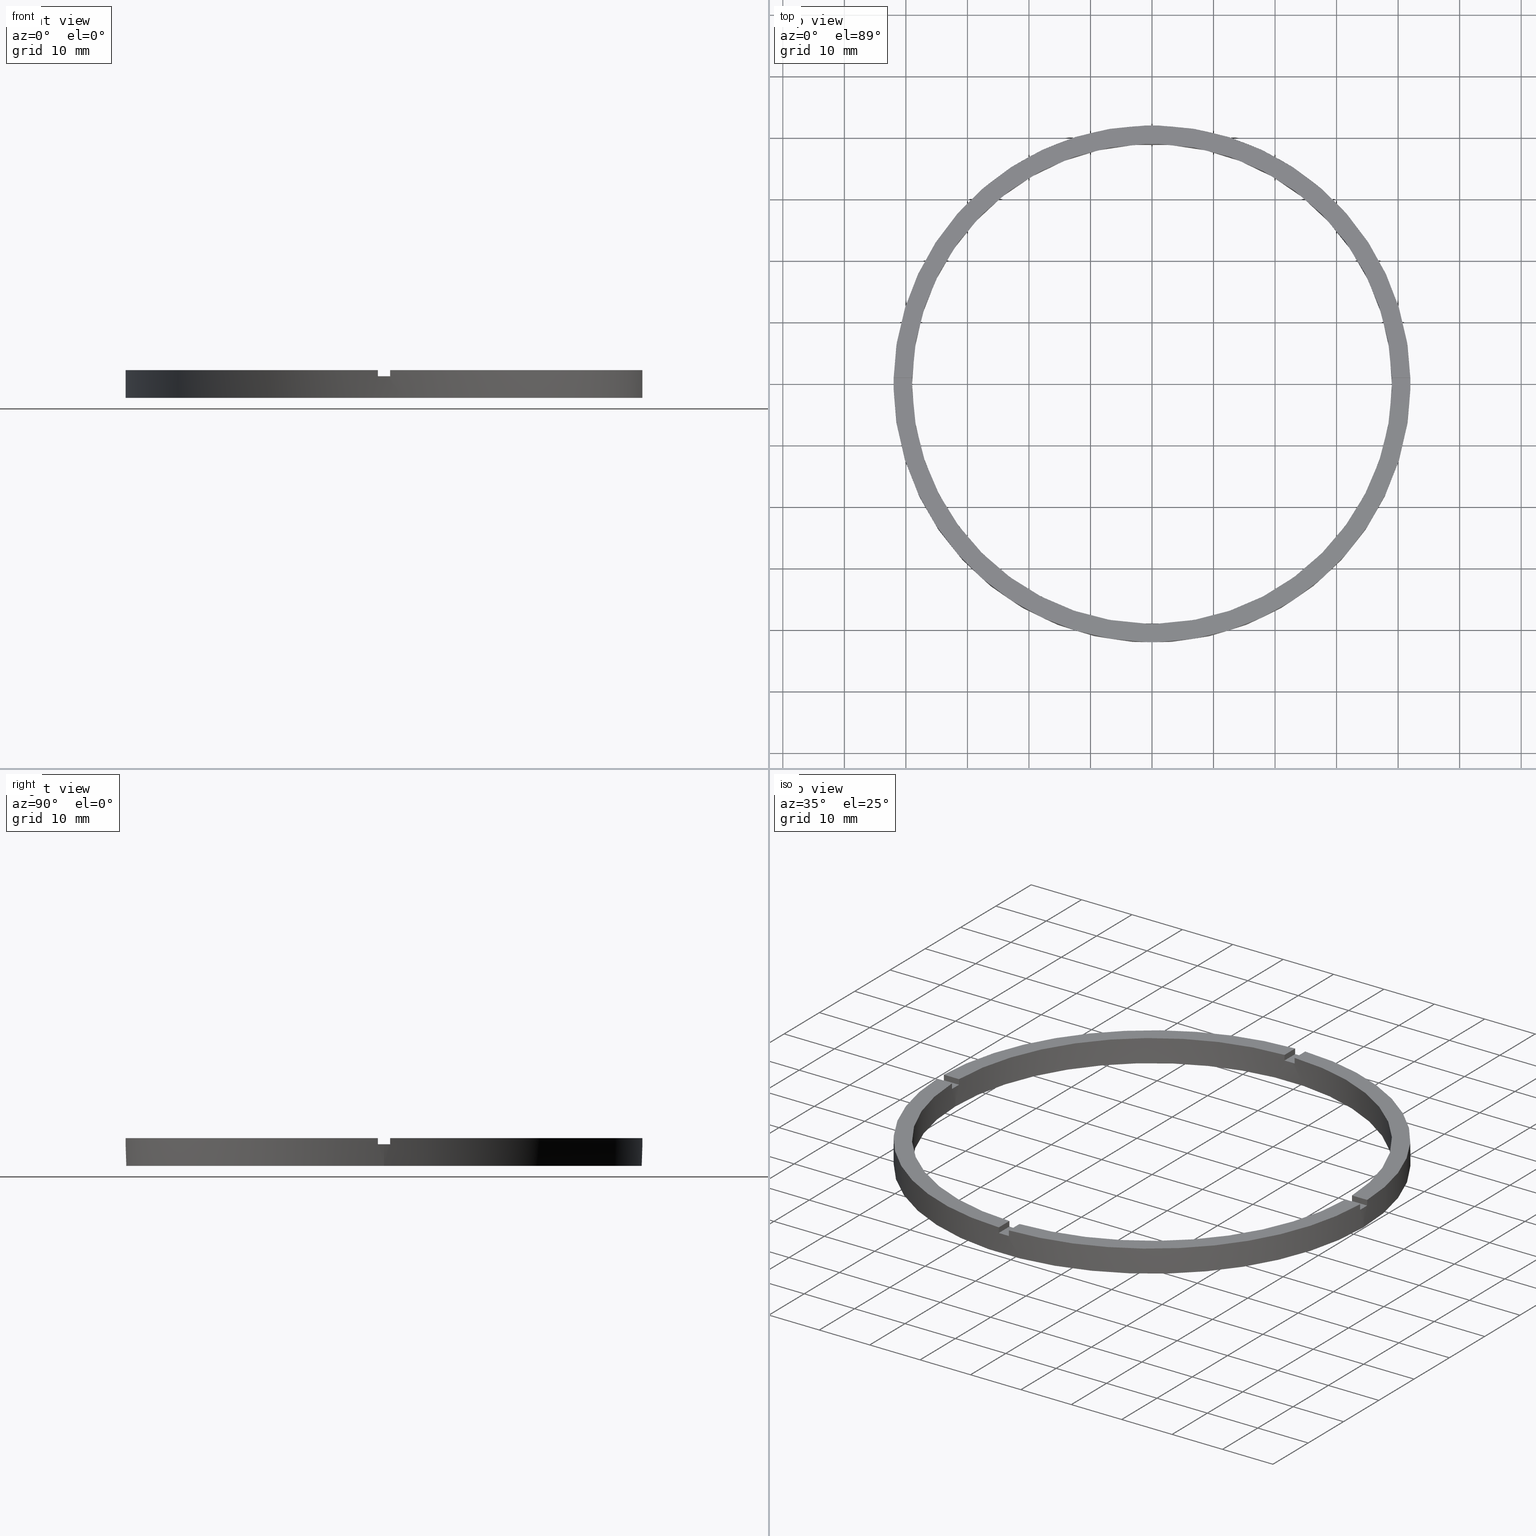
[diagram: canonical four-view strip — front | top / right | iso, engineering-drawing reading convention]
A machine part, canonical four-view strip (front | top / right | iso — engineering-drawing reading convention). The complete STEP part file that produces these views, byte-faithful:
ISO-10303-21;
HEADER;
FILE_DESCRIPTION (( 'STEP AP203' ),
    '1' );
FILE_NAME ('514172.step',
    '2024-12-26T02:44:33',
    ( 'MSI' ),
    ( '' ),
    'SwSTEP 2.0',
    'SolidWorks 2020',
    '' );
FILE_SCHEMA (( 'CONFIG_CONTROL_DESIGN' ));
ENDSEC;

DATA;
#1 = APPROVAL_STATUS ( 'not_yet_approved' ) ;
#2 = AXIS2_PLACEMENT_3D ( 'NONE', #567, #324, #333 ) ;
#3 = AXIS2_PLACEMENT_3D ( 'NONE', #343, #192, #351 ) ;
#4 = VERTEX_POINT ( 'NONE', #776 ) ;
#5 = DIRECTION ( 'NONE',  ( -0.000000000000000000, 0.000000000000000000, 1.000000000000000000 ) ) ;
#6 = CARTESIAN_POINT ( 'NONE',  ( 0.9999999999999742428, 32.00000000000000000, 4.500000000000000000 ) ) ;
#7 = EDGE_CURVE ( 'NONE', #493, #204, #397, .T. ) ;
#8 = ORIENTED_EDGE ( 'NONE', *, *, #475, .F. ) ;
#9 = EDGE_CURVE ( 'NONE', #652, #780, #679, .T. ) ;
#10 = AXIS2_PLACEMENT_3D ( 'NONE', #352, #431, #483 ) ;
#11 = ORIENTED_EDGE ( 'NONE', *, *, #76, .F. ) ;
#12 = DIRECTION ( 'NONE',  ( 0.000000000000000000, 0.000000000000000000, 1.000000000000000000 ) ) ;
#13 = ORIENTED_EDGE ( 'NONE', *, *, #157, .T. ) ;
#14 = CARTESIAN_POINT ( 'NONE',  ( -1.000000000000025757, 32.00000000000000000, 3.499999999999999556 ) ) ;
#15 = ORIENTED_EDGE ( 'NONE', *, *, #249, .T. ) ;
#16 = EDGE_CURVE ( 'NONE', #70, #673, #127, .T. ) ;
#17 = EDGE_LOOP ( 'NONE', ( #44, #288, #305, #42, #549, #563, #669, #557, #371, #126, #556, #259 ) ) ;
#18 = ORIENTED_EDGE ( 'NONE', *, *, #486, .T. ) ;
#19 = VERTEX_POINT ( 'NONE', #615 ) ;
#20 = CARTESIAN_POINT ( 'NONE',  ( 39.00000000000000000, 4.776122516674677878E-15, 0.000000000000000000 ) ) ;
#21 = ORIENTED_EDGE ( 'NONE', *, *, #110, .T. ) ;
#22 = CARTESIAN_POINT ( 'NONE',  ( 39.00000000000000000, 4.776122516674677878E-15, 3.499999999999999556 ) ) ;
#23 = PLANE ( 'NONE',  #361 ) ;
#24 = ORIENTED_EDGE ( 'NONE', *, *, #703, .T. ) ;
#25 = ORIENTED_EDGE ( 'NONE', *, *, #303, .F. ) ;
#26 = ORIENTED_EDGE ( 'NONE', *, *, #504, .F. ) ;
#27 = DIRECTION ( 'NONE',  ( -1.000000000000000000, -1.951563910473907735E-16, 0.000000000000000000 ) ) ;
#28 = CIRCLE ( 'NONE', #624, 39.00000000000000000 ) ;
#29 = EDGE_LOOP ( 'NONE', ( #11, #640, #777, #107, #498, #658, #772, #293, #524, #643, #232, #224 ) ) ;
#30 = ORIENTED_EDGE ( 'NONE', *, *, #507, .T. ) ;
#31 = ORIENTED_EDGE ( 'NONE', *, *, #603, .F. ) ;
#32 = VERTEX_POINT ( 'NONE', #274 ) ;
#33 = ORIENTED_EDGE ( 'NONE', *, *, #273, .T. ) ;
#34 = ORIENTED_EDGE ( 'NONE', *, *, #255, .T. ) ;
#35 = ORIENTED_EDGE ( 'NONE', *, *, #340, .T. ) ;
#36 = EDGE_LOOP ( 'NONE', ( #66, #764, #572, #264 ) ) ;
#37 = ORIENTED_EDGE ( 'NONE', *, *, #119, .F. ) ;
#38 = EDGE_LOOP ( 'NONE', ( #13, #111 ) ) ;
#39 = CARTESIAN_POINT ( 'NONE',  ( 0.000000000000000000, 0.000000000000000000, 3.499999999999999556 ) ) ;
#40 = ORIENTED_EDGE ( 'NONE', *, *, #291, .F. ) ;
#41 = CARTESIAN_POINT ( 'NONE',  ( 0.000000000000000000, 0.000000000000000000, 3.499999999999999556 ) ) ;
#42 = ORIENTED_EDGE ( 'NONE', *, *, #655, .F. ) ;
#43 = VERTEX_POINT ( 'NONE', #302 ) ;
#44 = ORIENTED_EDGE ( 'NONE', *, *, #628, .F. ) ;
#45 = EDGE_CURVE ( 'NONE', #656, #648, #116, .T. ) ;
#46 = ORIENTED_EDGE ( 'NONE', *, *, #770, .T. ) ;
#47 = ADVANCED_FACE ( 'NONE', ( #123 ), #515, .T. ) ;
#48 = CLOSED_SHELL ( 'NONE', ( #569, #137, #579, #518, #47, #395, #91, #752, #348, #93, #744, #637, #644, #513, #331, #206, #469, #160, #724, #99, #600 ) ) ;
#49 = CARTESIAN_POINT ( 'NONE',  ( 0.000000000000000000, 0.000000000000000000, 0.000000000000000000 ) ) ;
#50 = DIRECTION ( 'NONE',  ( -0.000000000000000000, -0.000000000000000000, -1.000000000000000000 ) ) ;
#51 = EDGE_LOOP ( 'NONE', ( #542, #564, #269, #26, #555, #535, #24, #373, #34, #31, #297, #25 ) ) ;
#52 = DIRECTION ( 'NONE',  ( 8.673617379884034239E-17, -1.000000000000000000, 0.000000000000000000 ) ) ;
#53 = AXIS2_PLACEMENT_3D ( 'NONE', #268, #525, #412 ) ;
#54 = PRODUCT_RELATED_PRODUCT_CATEGORY ( 'detail', '', ( #253 ) ) ;
#55 = ORIENTED_EDGE ( 'NONE', *, *, #198, .F. ) ;
#56 = CARTESIAN_POINT ( 'NONE',  ( 31.99999999999999289, -1.000000000000157430, 3.499999999999999556 ) ) ;
#57 = APPROVAL_PERSON_ORGANIZATION ( #613, #244, #229 ) ;
#58 = EDGE_CURVE ( 'NONE', #43, #318, #381, .T. ) ;
#59 = APPROVAL_DATE_TIME ( #74, #662 ) ;
#60 = VERTEX_POINT ( 'NONE', #169 ) ;
#61 = PLANE ( 'NONE',  #205 ) ;
#62 = CARTESIAN_POINT ( 'NONE',  ( -38.98717737923585247, 0.9999999999999715783, 4.500000000000000000 ) ) ;
#63 = EDGE_CURVE ( 'NONE', #103, #262, #375, .T. ) ;
#64 = CARTESIAN_POINT ( 'NONE',  ( 31.99999999999999289, 0.9999999999998425704, 3.499999999999999556 ) ) ;
#65 = FACE_OUTER_BOUND ( 'NONE', #132, .T. ) ;
#66 = ORIENTED_EDGE ( 'NONE', *, *, #753, .T. ) ;
#67 = VECTOR ( 'NONE', #561, 1000.000000000000000 ) ;
#68 = ORIENTED_EDGE ( 'NONE', *, *, #7, .F. ) ;
#69 = AXIS2_PLACEMENT_3D ( 'NONE', #775, #330, #168 ) ;
#70 = VERTEX_POINT ( 'NONE', #84 ) ;
#71 = DIRECTION ( 'NONE',  ( 1.000000000000000000, 0.000000000000000000, -0.000000000000000000 ) ) ;
#72 = DIRECTION ( 'NONE',  ( 0.000000000000000000, 0.000000000000000000, 1.000000000000000000 ) ) ;
#73 = ORIENTED_EDGE ( 'NONE', *, *, #621, .F. ) ;
#74 = DATE_AND_TIME ( #328, #587 ) ;
#75 = CARTESIAN_POINT ( 'NONE',  ( -1.000000000000159206, -38.98717737923584536, 4.500000000000000000 ) ) ;
#76 = EDGE_CURVE ( 'NONE', #258, #304, #384, .T. ) ;
#77 = VECTOR ( 'NONE', #490, 1000.000000000000000 ) ;
#78 = COORDINATED_UNIVERSAL_TIME_OFFSET ( 8, 0, .AHEAD. ) ;
#79 = CARTESIAN_POINT ( 'NONE',  ( 0.000000000000000000, 0.000000000000000000, 3.499999999999999556 ) ) ;
#80 = PERSON_AND_ORGANIZATION ( #459, #582 ) ;
#81 = PERSON_AND_ORGANIZATION ( #459, #582 ) ;
#82 = FACE_OUTER_BOUND ( 'NONE', #29, .T. ) ;
#83 = DIRECTION ( 'NONE',  ( 1.000000000000000000, 0.000000000000000000, 0.000000000000000000 ) ) ;
#84 = CARTESIAN_POINT ( 'NONE',  ( 0.9999999999998412381, -41.98809355043403713, 4.500000000000000000 ) ) ;
#85 = LOCAL_TIME ( 10, 44, 33.00000000000000000, #78 ) ;
#86 = CALENDAR_DATE ( 2024, 26, 12 ) ;
#87 = DATE_AND_TIME ( #574, #309 ) ;
#88 = AXIS2_PLACEMENT_3D ( 'NONE', #647, #536, #257 ) ;
#89 = PRODUCT_DEFINITION_FORMATION_WITH_SPECIFIED_SOURCE ( '�κ�', '', #253, .NOT_KNOWN. ) ;
#90 = DIRECTION ( 'NONE',  ( 1.000000000000000000, 0.000000000000000000, 0.000000000000000000 ) ) ;
#91 = ADVANCED_FACE ( 'NONE', ( #117, #118 ), #495, .F. ) ;
#92 = DIRECTION ( 'NONE',  ( 0.000000000000000000, 0.000000000000000000, 1.000000000000000000 ) ) ;
#93 = ADVANCED_FACE ( 'NONE', ( #667 ), #358, .F. ) ;
#94 = CARTESIAN_POINT ( 'NONE',  ( 0.000000000000000000, 0.000000000000000000, 3.499999999999999556 ) ) ;
#95 = DIRECTION ( 'NONE',  ( 1.000000000000000000, 0.000000000000000000, 0.000000000000000000 ) ) ;
#96 = CC_DESIGN_PERSON_AND_ORGANIZATION_ASSIGNMENT ( #80, #426, ( #89 ) ) ;
#97 = DIRECTION ( 'NONE',  ( -0.000000000000000000, -0.000000000000000000, -1.000000000000000000 ) ) ;
#98 = CARTESIAN_POINT ( 'NONE',  ( -32.00000000000018474, -1.000000000000027089, 4.500000000000000000 ) ) ;
#99 = ADVANCED_FACE ( 'NONE', ( #638 ), #620, .F. ) ;
#100 = DIRECTION ( 'NONE',  ( -1.000000000000000000, 0.000000000000000000, 0.000000000000000000 ) ) ;
#101 = DIRECTION ( 'NONE',  ( 0.000000000000000000, 0.000000000000000000, 1.000000000000000000 ) ) ;
#102 = VECTOR ( 'NONE', #97, 1000.000000000000000 ) ;
#103 = VERTEX_POINT ( 'NONE', #686 ) ;
#104 = VERTEX_POINT ( 'NONE', #299 ) ;
#105 = AXIS2_PLACEMENT_3D ( 'NONE', #654, #732, #485 ) ;
#106 = CARTESIAN_POINT ( 'NONE',  ( -1.000000000000025757, 38.98717737923585247, 4.500000000000000000 ) ) ;
#107 = ORIENTED_EDGE ( 'NONE', *, *, #710, .F. ) ;
#108 = CARTESIAN_POINT ( 'NONE',  ( 38.98717737923585958, 0.9999999999998432365, 4.500000000000000000 ) ) ;
#109 = EDGE_LOOP ( 'NONE', ( #520, #382, #33, #653 ) ) ;
#110 = EDGE_CURVE ( 'NONE', #207, #228, #120, .T. ) ;
#111 = ORIENTED_EDGE ( 'NONE', *, *, #287, .T. ) ;
#112 = AXIS2_PLACEMENT_3D ( 'NONE', #94, #265, #210 ) ;
#113 = DIRECTION ( 'NONE',  ( 1.000000000000000000, 0.000000000000000000, -0.000000000000000000 ) ) ;
#114 = VECTOR ( 'NONE', #286, 1000.000000000000000 ) ;
#115 = DIRECTION ( 'NONE',  ( -8.673617379884034239E-17, 1.000000000000000000, 0.000000000000000000 ) ) ;
#116 = LINE ( 'NONE', #467, #136 ) ;
#117 = FACE_OUTER_BOUND ( 'NONE', #282, .T. ) ;
#118 = FACE_BOUND ( 'NONE', #38, .T. ) ;
#119 = EDGE_CURVE ( 'NONE', #316, #458, #428, .T. ) ;
#120 = LINE ( 'NONE', #106, #102 ) ;
#121 = ORIENTED_EDGE ( 'NONE', *, *, #255, .F. ) ;
#122 = DIRECTION ( 'NONE',  ( 0.000000000000000000, 0.000000000000000000, 1.000000000000000000 ) ) ;
#123 = FACE_OUTER_BOUND ( 'NONE', #641, .T. ) ;
#124 = ORIENTED_EDGE ( 'NONE', *, *, #125, .T. ) ;
#125 = EDGE_CURVE ( 'NONE', #32, #760, #432, .T. ) ;
#126 = ORIENTED_EDGE ( 'NONE', *, *, #203, .T. ) ;
#127 = LINE ( 'NONE', #424, #650 ) ;
#128 = VECTOR ( 'NONE', #523, 1000.000000000000000 ) ;
#129 = DIRECTION ( 'NONE',  ( 1.301042606982605074E-16, -1.000000000000000000, 0.000000000000000000 ) ) ;
#130 = EDGE_LOOP ( 'NONE', ( #275, #546, #665, #254 ) ) ;
#131 = CARTESIAN_POINT ( 'NONE',  ( 0.000000000000000000, 0.000000000000000000, 0.000000000000000000 ) ) ;
#132 = EDGE_LOOP ( 'NONE', ( #312, #21, #499, #272 ) ) ;
#133 = ORIENTED_EDGE ( 'NONE', *, *, #144, .T. ) ;
#134 = ORIENTED_EDGE ( 'NONE', *, *, #16, .F. ) ;
#135 = ORIENTED_EDGE ( 'NONE', *, *, #714, .T. ) ;
#136 = VECTOR ( 'NONE', #676, 1000.000000000000000 ) ;
#137 = ADVANCED_FACE ( 'NONE', ( #161 ), #143, .T. ) ;
#138 = VECTOR ( 'NONE', #607, 1000.000000000000000 ) ;
#139 = CIRCLE ( 'NONE', #509, 42.00000000000000000 ) ;
#140 = VECTOR ( 'NONE', #27, 1000.000000000000000 ) ;
#141 = LINE ( 'NONE', #528, #138 ) ;
#142 = CIRCLE ( 'NONE', #158, 42.00000000000000000 ) ;
#143 = CYLINDRICAL_SURFACE ( 'NONE', #451, 42.00000000000000000 ) ;
#144 = EDGE_CURVE ( 'NONE', #392, #652, #689, .T. ) ;
#145 = CYLINDRICAL_SURFACE ( 'NONE', #457, 39.00000000000000000 ) ;
#146 = AXIS2_PLACEMENT_3D ( 'NONE', #418, #718, #474 ) ;
#147 = VECTOR ( 'NONE', #737, 1000.000000000000000 ) ;
#148 = CC_DESIGN_APPROVAL ( #662, ( #196 ) ) ;
#149 = LINE ( 'NONE', #722, #696 ) ;
#150 = DIRECTION ( 'NONE',  ( 1.000000000000000000, 0.000000000000000000, -0.000000000000000000 ) ) ;
#151 = CIRCLE ( 'NONE', #632, 39.00000000000000000 ) ;
#152 = DIRECTION ( 'NONE',  ( -1.000000000000000000, 0.000000000000000000, 0.000000000000000000 ) ) ;
#153 = VECTOR ( 'NONE', #129, 1000.000000000000000 ) ;
#154 = EDGE_CURVE ( 'NONE', #247, #501, #699, .T. ) ;
#155 = LINE ( 'NONE', #642, #427 ) ;
#156 = VECTOR ( 'NONE', #72, 1000.000000000000000 ) ;
#157 = EDGE_CURVE ( 'NONE', #60, #677, #411, .T. ) ;
#158 = AXIS2_PLACEMENT_3D ( 'NONE', #778, #101, #283 ) ;
#159 = FACE_OUTER_BOUND ( 'NONE', #295, .T. ) ;
#160 = ADVANCED_FACE ( 'NONE', ( #700 ), #174, .T. ) ;
#161 = FACE_OUTER_BOUND ( 'NONE', #17, .T. ) ;
#162 = DIRECTION ( 'NONE',  ( -0.000000000000000000, -0.000000000000000000, -1.000000000000000000 ) ) ;
#163 = CARTESIAN_POINT ( 'NONE',  ( -38.98717737923585247, -1.000000000000028422, 4.500000000000000000 ) ) ;
#164 = ORIENTED_EDGE ( 'NONE', *, *, #327, .T. ) ;
#165 = CIRCLE ( 'NONE', #759, 42.00000000000000000 ) ;
#166 = DIRECTION ( 'NONE',  ( 1.000000000000000000, 0.000000000000000000, -0.000000000000000000 ) ) ;
#167 = LINE ( 'NONE', #682, #156 ) ;
#168 = DIRECTION ( 'NONE',  ( 1.000000000000000000, 0.000000000000000000, 0.000000000000000000 ) ) ;
#169 = CARTESIAN_POINT ( 'NONE',  ( -39.00000000000000000, 0.000000000000000000, 0.000000000000000000 ) ) ;
#170 = AXIS2_PLACEMENT_3D ( 'NONE', #79, #292, #166 ) ;
#171 = VECTOR ( 'NONE', #270, 1000.000000000000000 ) ;
#172 = EDGE_CURVE ( 'NONE', #4, #760, #692, .T. ) ;
#173 = CIRCLE ( 'NONE', #112, 39.00000000000000000 ) ;
#174 = PLANE ( 'NONE',  #170 ) ;
#175 = DIRECTION ( 'NONE',  ( 0.000000000000000000, 0.000000000000000000, 1.000000000000000000 ) ) ;
#176 = FACE_OUTER_BOUND ( 'NONE', #379, .T. ) ;
#177 = DIRECTION ( 'NONE',  ( 1.000000000000000000, 8.673617379884034239E-17, 0.000000000000000000 ) ) ;
#178 = CARTESIAN_POINT ( 'NONE',  ( 31.99999999999999289, 0.9999999999998425704, 4.500000000000000000 ) ) ;
#179 = FACE_OUTER_BOUND ( 'NONE', #575, .T. ) ;
#180 = FACE_OUTER_BOUND ( 'NONE', #577, .T. ) ;
#181 = CARTESIAN_POINT ( 'NONE',  ( 0.000000000000000000, 0.000000000000000000, 4.500000000000000000 ) ) ;
#182 = LINE ( 'NONE', #163, #719 ) ;
#183 = LINE ( 'NONE', #659, #453 ) ;
#184 = LINE ( 'NONE', #62, #449 ) ;
#185 = FACE_OUTER_BOUND ( 'NONE', #109, .T. ) ;
#186 = CARTESIAN_POINT ( 'NONE',  ( -39.00000000000000000, 0.000000000000000000, 4.500000000000000000 ) ) ;
#187 = CIRCLE ( 'NONE', #408, 39.00000000000000000 ) ;
#188 = DIRECTION ( 'NONE',  ( -0.000000000000000000, -0.000000000000000000, -1.000000000000000000 ) ) ;
#189 = VECTOR ( 'NONE', #672, 1000.000000000000000 ) ;
#190 = CC_DESIGN_APPROVAL ( #545, ( #89 ) ) ;
#191 = FACE_OUTER_BOUND ( 'NONE', #769, .T. ) ;
#192 = DIRECTION ( 'NONE',  ( 0.000000000000000000, -0.000000000000000000, 1.000000000000000000 ) ) ;
#193 = EDGE_CURVE ( 'NONE', #392, #315, #416, .T. ) ;
#194 = DIRECTION ( 'NONE',  ( 1.000000000000000000, 0.000000000000000000, 0.000000000000000000 ) ) ;
#195 = AXIS2_PLACEMENT_3D ( 'NONE', #779, #175, #71 ) ;
#196 = PRODUCT_DEFINITION ( 'δ֪', '', #89, #240 ) ;
#197 = APPROVAL_STATUS ( 'not_yet_approved' ) ;
#198 = EDGE_CURVE ( 'NONE', #300, #560, #151, .T. ) ;
#199 = VERTEX_POINT ( 'NONE', #465 ) ;
#200 = DIRECTION ( 'NONE',  ( 0.000000000000000000, 0.000000000000000000, 1.000000000000000000 ) ) ;
#201 = EDGE_CURVE ( 'NONE', #304, #553, #398, .T. ) ;
#202 = DIRECTION ( 'NONE',  ( 1.000000000000000000, 0.000000000000000000, 0.000000000000000000 ) ) ;
#203 = EDGE_CURVE ( 'NONE', #501, #199, #149, .T. ) ;
#204 = VERTEX_POINT ( 'NONE', #349 ) ;
#205 = AXIS2_PLACEMENT_3D ( 'NONE', #725, #115, #783 ) ;
#206 = ADVANCED_FACE ( 'NONE', ( #697 ), #61, .F. ) ;
#207 = VERTEX_POINT ( 'NONE', #774 ) ;
#208 = DIRECTION ( 'NONE',  ( -1.951563910473907735E-16, 1.000000000000000000, 0.000000000000000000 ) ) ;
#209 = CARTESIAN_POINT ( 'NONE',  ( 0.000000000000000000, 0.000000000000000000, 3.499999999999999556 ) ) ;
#210 = DIRECTION ( 'NONE',  ( 1.000000000000000000, 0.000000000000000000, 0.000000000000000000 ) ) ;
#211 = EDGE_CURVE ( 'NONE', #656, #780, #142, .T. ) ;
#212 = DIRECTION ( 'NONE',  ( 0.000000000000000000, 0.000000000000000000, 1.000000000000000000 ) ) ;
#213 = DIRECTION ( 'NONE',  ( 0.000000000000000000, 1.000000000000000000, 0.000000000000000000 ) ) ;
#214 = DIRECTION ( 'NONE',  ( -1.000000000000000000, 0.000000000000000000, 0.000000000000000000 ) ) ;
#215 = DIRECTION ( 'NONE',  ( 1.000000000000000000, 0.000000000000000000, -0.000000000000000000 ) ) ;
#216 = AXIS2_PLACEMENT_3D ( 'NONE', #406, #336, #260 ) ;
#217 = DIRECTION ( 'NONE',  ( 0.000000000000000000, 0.000000000000000000, 1.000000000000000000 ) ) ;
#218 = ORIENTED_EDGE ( 'NONE', *, *, #58, .F. ) ;
#219 = PLANE ( 'NONE',  #195 ) ;
#220 = CARTESIAN_POINT ( 'NONE',  ( -1.000000000000025757, 32.00000000000000000, 4.500000000000000000 ) ) ;
#221 = APPROVAL_ROLE ( '' ) ;
#222 = EDGE_CURVE ( 'NONE', #553, #304, #165, .T. ) ;
#223 = DIRECTION ( 'NONE',  ( 1.301042606982605074E-16, -1.000000000000000000, 0.000000000000000000 ) ) ;
#224 = ORIENTED_EDGE ( 'NONE', *, *, #222, .T. ) ;
#225 = CARTESIAN_POINT ( 'NONE',  ( 0.000000000000000000, 0.000000000000000000, 4.500000000000000000 ) ) ;
#226 = CARTESIAN_POINT ( 'NONE',  ( 31.99999999999999289, -1.000000000000157430, 4.500000000000000000 ) ) ;
#227 = CARTESIAN_POINT ( 'NONE',  ( 42.00000000000000000, 5.143516556418883322E-15, 0.000000000000000000 ) ) ;
#228 = VERTEX_POINT ( 'NONE', #491 ) ;
#229 = APPROVAL_ROLE ( '' ) ;
#230 = DIRECTION ( 'NONE',  ( 0.000000000000000000, 0.000000000000000000, 1.000000000000000000 ) ) ;
#231 = DIRECTION ( 'NONE',  ( 0.000000000000000000, 0.000000000000000000, -1.000000000000000000 ) ) ;
#232 = ORIENTED_EDGE ( 'NONE', *, *, #655, .T. ) ;
#233 = DIRECTION ( 'NONE',  ( -1.000000000000000000, -8.673617379884034239E-17, -0.000000000000000000 ) ) ;
#234 = ORIENTED_EDGE ( 'NONE', *, *, #7, .T. ) ;
#235 = ORIENTED_EDGE ( 'NONE', *, *, #441, .T. ) ;
#236 = VERTEX_POINT ( 'NONE', #442 ) ;
#237 = ORIENTED_EDGE ( 'NONE', *, *, #628, .T. ) ;
#238 = DIRECTION ( 'NONE',  ( 1.000000000000000000, 0.000000000000000000, 0.000000000000000000 ) ) ;
#239 = ORIENTED_EDGE ( 'NONE', *, *, #58, .T. ) ;
#240 = DESIGN_CONTEXT ( 'detailed design', #267, 'design' ) ;
#241 = EDGE_CURVE ( 'NONE', #70, #316, #437, .T. ) ;
#242 =( LENGTH_UNIT ( ) NAMED_UNIT ( * ) SI_UNIT ( .MILLI., .METRE. ) );
#243 = CARTESIAN_POINT ( 'NONE',  ( 0.000000000000000000, 0.000000000000000000, 3.499999999999999556 ) ) ;
#244 = APPROVAL ( #1, 'δָ��' ) ;
#245 = ORIENTED_EDGE ( 'NONE', *, *, #347, .F. ) ;
#246 = CARTESIAN_POINT ( 'NONE',  ( 0.000000000000000000, 0.000000000000000000, 0.000000000000000000 ) ) ;
#247 = VERTEX_POINT ( 'NONE', #547 ) ;
#248 = CARTESIAN_POINT ( 'NONE',  ( 42.00000000000000000, 5.143516556418883322E-15, 4.500000000000000000 ) ) ;
#249 = EDGE_CURVE ( 'NONE', #372, #496, #419, .T. ) ;
#250 = AXIS2_PLACEMENT_3D ( 'NONE', #350, #712, #415 ) ;
#251 = AXIS2_PLACEMENT_3D ( 'NONE', #464, #593, #639 ) ;
#252 = ORIENTED_EDGE ( 'NONE', *, *, #357, .F. ) ;
#253 = PRODUCT ( '514172', '514172', '', ( #364 ) ) ;
#254 = ORIENTED_EDGE ( 'NONE', *, *, #539, .F. ) ;
#255 = EDGE_CURVE ( 'NONE', #392, #458, #680, .T. ) ;
#256 = DIRECTION ( 'NONE',  ( -0.000000000000000000, -0.000000000000000000, -1.000000000000000000 ) ) ;
#257 = DIRECTION ( 'NONE',  ( 1.000000000000000000, 0.000000000000000000, 0.000000000000000000 ) ) ;
#258 = VERTEX_POINT ( 'NONE', #306 ) ;
#259 = ORIENTED_EDGE ( 'NONE', *, *, #671, .T. ) ;
#260 = DIRECTION ( 'NONE',  ( 1.000000000000000000, 0.000000000000000000, 0.000000000000000000 ) ) ;
#261 = CARTESIAN_POINT ( 'NONE',  ( -41.98809355043403713, 0.9999999999999709122, 3.499999999999999556 ) ) ;
#262 = VERTEX_POINT ( 'NONE', #623 ) ;
#263 = CARTESIAN_POINT ( 'NONE',  ( 41.98809355043403002, -1.000000000000156541, 4.500000000000000000 ) ) ;
#264 = ORIENTED_EDGE ( 'NONE', *, *, #154, .T. ) ;
#265 = DIRECTION ( 'NONE',  ( 0.000000000000000000, -0.000000000000000000, 1.000000000000000000 ) ) ;
#266 = CARTESIAN_POINT ( 'NONE',  ( 0.000000000000000000, 0.000000000000000000, 4.500000000000000000 ) ) ;
#267 = APPLICATION_CONTEXT ( 'configuration controlled 3d designs of mechanical parts and assemblies' ) ;
#268 = CARTESIAN_POINT ( 'NONE',  ( 0.000000000000000000, 0.000000000000000000, 3.499999999999999556 ) ) ;
#269 = ORIENTED_EDGE ( 'NONE', *, *, #157, .F. ) ;
#270 = DIRECTION ( 'NONE',  ( 0.000000000000000000, 0.000000000000000000, 1.000000000000000000 ) ) ;
#271 = DIRECTION ( 'NONE',  ( -1.301042606982605074E-16, 1.000000000000000000, 0.000000000000000000 ) ) ;
#272 = ORIENTED_EDGE ( 'NONE', *, *, #739, .F. ) ;
#273 = EDGE_CURVE ( 'NONE', #315, #780, #693, .T. ) ;
#274 = CARTESIAN_POINT ( 'NONE',  ( 38.98717737923584536, -1.000000000000156763, 4.500000000000000000 ) ) ;
#275 = ORIENTED_EDGE ( 'NONE', *, *, #486, .F. ) ;
#276 = VECTOR ( 'NONE', #664, 1000.000000000000000 ) ;
#277 = DIRECTION ( 'NONE',  ( 1.000000000000000000, 0.000000000000000000, 0.000000000000000000 ) ) ;
#278 = ORIENTED_EDGE ( 'NONE', *, *, #703, .F. ) ;
#279 = CIRCLE ( 'NONE', #471, 42.00000000000000000 ) ;
#280 = CC_DESIGN_DATE_AND_TIME_ASSIGNMENT ( #596, #730, ( #196 ) ) ;
#281 = EDGE_LOOP ( 'NONE', ( #645, #30, #8, #529 ) ) ;
#282 = EDGE_LOOP ( 'NONE', ( #540, #733 ) ) ;
#283 = DIRECTION ( 'NONE',  ( 1.000000000000000000, 0.000000000000000000, 0.000000000000000000 ) ) ;
#284 = ORIENTED_EDGE ( 'NONE', *, *, #110, .F. ) ;
#285 = CARTESIAN_POINT ( 'NONE',  ( 0.000000000000000000, 0.000000000000000000, 3.499999999999999556 ) ) ;
#286 = DIRECTION ( 'NONE',  ( 0.000000000000000000, 0.000000000000000000, 1.000000000000000000 ) ) ;
#287 = EDGE_CURVE ( 'NONE', #677, #60, #433, .T. ) ;
#288 = ORIENTED_EDGE ( 'NONE', *, *, #76, .T. ) ;
#289 = APPLICATION_PROTOCOL_DEFINITION ( 'international standard', 'config_control_design', 1994, #267 ) ;
#290 = ORIENTED_EDGE ( 'NONE', *, *, #573, .F. ) ;
#291 = EDGE_CURVE ( 'NONE', #318, #204, #701, .T. ) ;
#292 = DIRECTION ( 'NONE',  ( 0.000000000000000000, 0.000000000000000000, 1.000000000000000000 ) ) ;
#293 = ORIENTED_EDGE ( 'NONE', *, *, #211, .F. ) ;
#294 = AXIS2_PLACEMENT_3D ( 'NONE', #313, #5, #238 ) ;
#295 = EDGE_LOOP ( 'NONE', ( #73, #581, #124, #766 ) ) ;
#296 = CARTESIAN_POINT ( 'NONE',  ( -1.000000000000159206, -38.98717737923584536, 4.500000000000000000 ) ) ;
#297 = ORIENTED_EDGE ( 'NONE', *, *, #468, .T. ) ;
#298 = ORIENTED_EDGE ( 'NONE', *, *, #154, .F. ) ;
#299 = CARTESIAN_POINT ( 'NONE',  ( 0.9999999999999742428, 38.98717737923585247, 4.500000000000000000 ) ) ;
#300 = VERTEX_POINT ( 'NONE', #477 ) ;
#301 = AXIS2_PLACEMENT_3D ( 'NONE', #49, #727, #519 ) ;
#302 = CARTESIAN_POINT ( 'NONE',  ( 41.98809355043403713, 0.9999999999998434586, 4.500000000000000000 ) ) ;
#303 = EDGE_CURVE ( 'NONE', #300, #32, #167, .T. ) ;
#304 = VERTEX_POINT ( 'NONE', #227 ) ;
#305 = ORIENTED_EDGE ( 'NONE', *, *, #201, .T. ) ;
#306 = CARTESIAN_POINT ( 'NONE',  ( 42.00000000000000000, 5.143516556418883322E-15, 3.499999999999999556 ) ) ;
#307 = PERSON_AND_ORGANIZATION ( #459, #582 ) ;
#308 = DIRECTION ( 'NONE',  ( 1.000000000000000000, 1.951563910473907735E-16, 0.000000000000000000 ) ) ;
#309 = LOCAL_TIME ( 10, 44, 33.00000000000000000, #571 ) ;
#310 = APPLICATION_PROTOCOL_DEFINITION ( 'international standard', 'config_control_design', 1994, #631 ) ;
#311 = CIRCLE ( 'NONE', #3, 42.00000000000000000 ) ;
#312 = ORIENTED_EDGE ( 'NONE', *, *, #357, .T. ) ;
#313 = CARTESIAN_POINT ( 'NONE',  ( 0.000000000000000000, 0.000000000000000000, 3.499999999999999556 ) ) ;
#314 = FACE_OUTER_BOUND ( 'NONE', #130, .T. ) ;
#315 = VERTEX_POINT ( 'NONE', #296 ) ;
#316 = VERTEX_POINT ( 'NONE', #533 ) ;
#317 =( NAMED_UNIT ( * ) PLANE_ANGLE_UNIT ( ) SI_UNIT ( $, .RADIAN. ) );
#318 = VERTEX_POINT ( 'NONE', #728 ) ;
#319 = LINE ( 'NONE', #552, #77 ) ;
#320 = COORDINATED_UNIVERSAL_TIME_OFFSET ( 8, 0, .AHEAD. ) ;
#321 = DIRECTION ( 'NONE',  ( 0.000000000000000000, 0.000000000000000000, 1.000000000000000000 ) ) ;
#322 = CALENDAR_DATE ( 2024, 26, 12 ) ;
#323 = PERSON_AND_ORGANIZATION ( #459, #582 ) ;
#324 = DIRECTION ( 'NONE',  ( 0.000000000000000000, 0.000000000000000000, 1.000000000000000000 ) ) ;
#325 = CARTESIAN_POINT ( 'NONE',  ( -42.00000000000000000, 0.000000000000000000, 0.000000000000000000 ) ) ;
#326 = APPROVAL_PERSON_ORGANIZATION ( #609, #545, #221 ) ;
#327 = EDGE_CURVE ( 'NONE', #4, #258, #435, .T. ) ;
#328 = CALENDAR_DATE ( 2024, 26, 12 ) ;
#329 = LINE ( 'NONE', #383, #585 ) ;
#330 = DIRECTION ( 'NONE',  ( 0.000000000000000000, 0.000000000000000000, 1.000000000000000000 ) ) ;
#331 = ADVANCED_FACE ( 'NONE', ( #687 ), #423, .T. ) ;
#332 = COORDINATED_UNIVERSAL_TIME_OFFSET ( 8, 0, .AHEAD. ) ;
#333 = DIRECTION ( 'NONE',  ( 1.000000000000000000, 0.000000000000000000, 0.000000000000000000 ) ) ;
#334 = AXIS2_PLACEMENT_3D ( 'NONE', #131, #321, #492 ) ;
#335 = PERSON_AND_ORGANIZATION ( #459, #582 ) ;
#336 = DIRECTION ( 'NONE',  ( 0.000000000000000000, 0.000000000000000000, 1.000000000000000000 ) ) ;
#337 = DATE_AND_TIME ( #601, #599 ) ;
#338 = EDGE_CURVE ( 'NONE', #19, #262, #403, .T. ) ;
#339 = DATE_AND_TIME ( #86, #606 ) ;
#340 = EDGE_CURVE ( 'NONE', #318, #104, #425, .T. ) ;
#341 = AXIS2_PLACEMENT_3D ( 'NONE', #723, #52, #177 ) ;
#342 = APPROVAL_DATE_TIME ( #87, #244 ) ;
#344 = DIRECTION ( 'NONE',  ( 1.000000000000000000, 0.000000000000000000, 0.000000000000000000 ) ) ;
#343 = CARTESIAN_POINT ( 'NONE',  ( 0.000000000000000000, 0.000000000000000000, 3.499999999999999556 ) ) ;
#345 = CARTESIAN_POINT ( 'NONE',  ( 0.000000000000000000, 0.000000000000000000, 3.499999999999999556 ) ) ;
#346 = CARTESIAN_POINT ( 'NONE',  ( -42.00000000000000000, 0.000000000000000000, 4.500000000000000000 ) ) ;
#347 = EDGE_CURVE ( 'NONE', #560, #677, #155, .T. ) ;
#348 = ADVANCED_FACE ( 'NONE', ( #413 ), #145, .F. ) ;
#349 = CARTESIAN_POINT ( 'NONE',  ( 38.98717737923585958, 0.9999999999998432365, 3.499999999999999556 ) ) ;
#350 = CARTESIAN_POINT ( 'NONE',  ( 0.000000000000000000, 0.000000000000000000, 4.500000000000000000 ) ) ;
#351 = DIRECTION ( 'NONE',  ( 1.000000000000000000, 0.000000000000000000, 0.000000000000000000 ) ) ;
#352 = CARTESIAN_POINT ( 'NONE',  ( 0.000000000000000000, 0.000000000000000000, 3.499999999999999556 ) ) ;
#353 = PLANE ( 'NONE',  #543 ) ;
#354 = DIRECTION ( 'NONE',  ( 0.000000000000000000, 0.000000000000000000, 1.000000000000000000 ) ) ;
#355 = PLANE ( 'NONE',  #661 ) ;
#356 = DIRECTION ( 'NONE',  ( 1.000000000000000000, 0.000000000000000000, 0.000000000000000000 ) ) ;
#357 = EDGE_CURVE ( 'NONE', #103, #207, #690, .T. ) ;
#358 = PLANE ( 'NONE',  #394 ) ;
#359 = PERSON_AND_ORGANIZATION_ROLE ( 'design_owner' ) ;
#360 = AXIS2_PLACEMENT_3D ( 'NONE', #181, #212, #215 ) ;
#361 = AXIS2_PLACEMENT_3D ( 'NONE', #635, #208, #385 ) ;
#362 = CARTESIAN_POINT ( 'NONE',  ( -1.000000000000160094, -32.00000000000017764, 4.500000000000000000 ) ) ;
#363 = DIRECTION ( 'NONE',  ( -0.000000000000000000, -0.000000000000000000, -1.000000000000000000 ) ) ;
#364 = MECHANICAL_CONTEXT ( 'NONE', #631, 'mechanical' ) ;
#365 = EDGE_CURVE ( 'NONE', #247, #228, #173, .T. ) ;
#366 = VECTOR ( 'NONE', #363, 1000.000000000000000 ) ;
#367 = ORIENTED_EDGE ( 'NONE', *, *, #287, .F. ) ;
#368 = EDGE_LOOP ( 'NONE', ( #510, #278, #747, #378 ) ) ;
#369 = ORIENTED_EDGE ( 'NONE', *, *, #508, .T. ) ;
#370 =( NAMED_UNIT ( * ) SI_UNIT ( $, .STERADIAN. ) SOLID_ANGLE_UNIT ( ) );
#371 = ORIENTED_EDGE ( 'NONE', *, *, #753, .F. ) ;
#372 = VERTEX_POINT ( 'NONE', #261 ) ;
#373 = ORIENTED_EDGE ( 'NONE', *, *, #193, .F. ) ;
#374 = ORIENTED_EDGE ( 'NONE', *, *, #340, .F. ) ;
#375 = CIRCLE ( 'NONE', #751, 42.00000000000000000 ) ;
#376 = ORIENTED_EDGE ( 'NONE', *, *, #756, .F. ) ;
#377 = ORIENTED_EDGE ( 'NONE', *, *, #504, .T. ) ;
#378 = ORIENTED_EDGE ( 'NONE', *, *, #211, .T. ) ;
#379 = EDGE_LOOP ( 'NONE', ( #512, #526, #37, #393 ) ) ;
#380 = CARTESIAN_POINT ( 'NONE',  ( 0.000000000000000000, 0.000000000000000000, 4.500000000000000000 ) ) ;
#381 = LINE ( 'NONE', #178, #128 ) ;
#382 = ORIENTED_EDGE ( 'NONE', *, *, #193, .T. ) ;
#383 = CARTESIAN_POINT ( 'NONE',  ( -1.000000000000025757, 41.98809355043403713, 4.500000000000000000 ) ) ;
#384 = LINE ( 'NONE', #248, #366 ) ;
#385 = DIRECTION ( 'NONE',  ( -1.000000000000000000, -1.951563910473907735E-16, 0.000000000000000000 ) ) ;
#386 = ORIENTED_EDGE ( 'NONE', *, *, #476, .T. ) ;
#387 = EDGE_LOOP ( 'NONE', ( #135, #670, #121, #133 ) ) ;
#388 = CARTESIAN_POINT ( 'NONE',  ( 41.98809355043403713, 0.9999999999998434586, 3.499999999999999556 ) ) ;
#389 = ORIENTED_EDGE ( 'NONE', *, *, #475, .T. ) ;
#390 = CC_DESIGN_SECURITY_CLASSIFICATION ( #446, ( #89 ) ) ;
#391 = DIRECTION ( 'NONE',  ( 1.000000000000000000, 0.000000000000000000, 0.000000000000000000 ) ) ;
#392 = VERTEX_POINT ( 'NONE', #466 ) ;
#393 = ORIENTED_EDGE ( 'NONE', *, *, #241, .F. ) ;
#394 = AXIS2_PLACEMENT_3D ( 'NONE', #436, #487, #308 ) ;
#395 = ADVANCED_FACE ( 'NONE', ( #417 ), #522, .T. ) ;
#396 = ORIENTED_EDGE ( 'NONE', *, *, #478, .T. ) ;
#397 = LINE ( 'NONE', #64, #663 ) ;
#398 = CIRCLE ( 'NONE', #301, 42.00000000000000000 ) ;
#399 = EDGE_CURVE ( 'NONE', #656, #236, #438, .T. ) ;
#400 = DIRECTION ( 'NONE',  ( -0.000000000000000000, -0.000000000000000000, -1.000000000000000000 ) ) ;
#401 = CIRCLE ( 'NONE', #216, 39.00000000000000000 ) ;
#402 = AXIS2_PLACEMENT_3D ( 'NONE', #209, #597, #502 ) ;
#403 = LINE ( 'NONE', #538, #434 ) ;
#404 = DIRECTION ( 'NONE',  ( 1.000000000000000000, 0.000000000000000000, 0.000000000000000000 ) ) ;
#405 = CARTESIAN_POINT ( 'NONE',  ( -41.98809355043403713, -1.000000000000029088, 4.500000000000000000 ) ) ;
#406 = CARTESIAN_POINT ( 'NONE',  ( 0.000000000000000000, 0.000000000000000000, 3.499999999999999556 ) ) ;
#407 = DIRECTION ( 'NONE',  ( -0.000000000000000000, -0.000000000000000000, -1.000000000000000000 ) ) ;
#408 = AXIS2_PLACEMENT_3D ( 'NONE', #41, #757, #277 ) ;
#409 = VECTOR ( 'NONE', #400, 1000.000000000000000 ) ;
#410 = AXIS2_PLACEMENT_3D ( 'NONE', #246, #454, #494 ) ;
#411 = CIRCLE ( 'NONE', #105, 39.00000000000000000 ) ;
#412 = DIRECTION ( 'NONE',  ( 1.000000000000000000, 0.000000000000000000, -0.000000000000000000 ) ) ;
#413 = FACE_OUTER_BOUND ( 'NONE', #462, .T. ) ;
#414 = VECTOR ( 'NONE', #691, 1000.000000000000000 ) ;
#415 = DIRECTION ( 'NONE',  ( 1.000000000000000000, 0.000000000000000000, 0.000000000000000000 ) ) ;
#416 = LINE ( 'NONE', #75, #420 ) ;
#417 = FACE_OUTER_BOUND ( 'NONE', #368, .T. ) ;
#418 = CARTESIAN_POINT ( 'NONE',  ( 0.000000000000000000, 0.000000000000000000, 3.499999999999999556 ) ) ;
#419 = CIRCLE ( 'NONE', #674, 42.00000000000000000 ) ;
#420 = VECTOR ( 'NONE', #354, 1000.000000000000000 ) ;
#421 = CARTESIAN_POINT ( 'NONE',  ( 0.000000000000000000, 0.000000000000000000, 0.000000000000000000 ) ) ;
#422 = CARTESIAN_POINT ( 'NONE',  ( -1.000000000000025757, 32.00000000000000000, 3.499999999999999556 ) ) ;
#423 = PLANE ( 'NONE',  #10 ) ;
#424 = CARTESIAN_POINT ( 'NONE',  ( 0.9999999999998400169, -32.00000000000017764, 4.500000000000000000 ) ) ;
#425 = CIRCLE ( 'NONE', #69, 39.00000000000000000 ) ;
#426 = PERSON_AND_ORGANIZATION_ROLE ( 'creator' ) ;
#427 = VECTOR ( 'NONE', #463, 1000.000000000000000 ) ;
#428 = LINE ( 'NONE', #429, #685 ) ;
#429 = CARTESIAN_POINT ( 'NONE',  ( 0.9999999999998400169, -32.00000000000017764, 3.499999999999999556 ) ) ;
#430 = DIRECTION ( 'NONE',  ( 1.000000000000000000, 1.301042606982605074E-16, 0.000000000000000000 ) ) ;
#431 = DIRECTION ( 'NONE',  ( -0.000000000000000000, 0.000000000000000000, 1.000000000000000000 ) ) ;
#432 = LINE ( 'NONE', #226, #147 ) ;
#433 = CIRCLE ( 'NONE', #734, 39.00000000000000000 ) ;
#434 = VECTOR ( 'NONE', #636, 1000.000000000000000 ) ;
#435 = CIRCLE ( 'NONE', #479, 42.00000000000000000 ) ;
#436 = CARTESIAN_POINT ( 'NONE',  ( -32.00000000000018474, -1.000000000000027089, 3.499999999999999556 ) ) ;
#437 = LINE ( 'NONE', #489, #414 ) ;
#438 = LINE ( 'NONE', #98, #698 ) ;
#439 = LINE ( 'NONE', #346, #716 ) ;
#440 = VECTOR ( 'NONE', #230, 1000.000000000000000 ) ;
#441 = EDGE_CURVE ( 'NONE', #754, #566, #681, .T. ) ;
#442 = CARTESIAN_POINT ( 'NONE',  ( -38.98717737923585247, -1.000000000000028422, 4.500000000000000000 ) ) ;
#443 = LINE ( 'NONE', #422, #189 ) ;
#444 = CIRCLE ( 'NONE', #88, 39.00000000000000000 ) ;
#445 = CARTESIAN_POINT ( 'NONE',  ( -38.98717737923585247, 0.9999999999999715783, 3.499999999999999556 ) ) ;
#446 = SECURITY_CLASSIFICATION ( '', '', #622 ) ;
#447 = LINE ( 'NONE', #56, #715 ) ;
#448 = MANIFOLD_SOLID_BREP ( '�г�-����1', #48 ) ;
#449 = VECTOR ( 'NONE', #612, 1000.000000000000000 ) ;
#450 = DIRECTION ( 'NONE',  ( 0.000000000000000000, 0.000000000000000000, 1.000000000000000000 ) ) ;
#451 = AXIS2_PLACEMENT_3D ( 'NONE', #605, #188, #481 ) ;
#452 = CIRCLE ( 'NONE', #146, 42.00000000000000000 ) ;
#453 = VECTOR ( 'NONE', #162, 1000.000000000000000 ) ;
#454 = DIRECTION ( 'NONE',  ( 0.000000000000000000, 0.000000000000000000, 1.000000000000000000 ) ) ;
#455 = LINE ( 'NONE', #568, #440 ) ;
#456 = FACE_OUTER_BOUND ( 'NONE', #51, .T. ) ;
#457 = AXIS2_PLACEMENT_3D ( 'NONE', #380, #407, #214 ) ;
#458 = VERTEX_POINT ( 'NONE', #514 ) ;
#459 = PERSON ( 'δָ��', 'δָ��', 'δָ��', ('δָ��'), ('δָ��'), ('δָ��') ) ;
#460 = CARTESIAN_POINT ( 'NONE',  ( -42.00000000000000000, 0.000000000000000000, 3.499999999999999556 ) ) ;
#461 = CARTESIAN_POINT ( 'NONE',  ( 0.000000000000000000, 0.000000000000000000, 4.500000000000000000 ) ) ;
#462 = EDGE_LOOP ( 'NONE', ( #245, #396, #40, #35, #559, #544, #284, #369, #562, #235, #377, #367 ) ) ;
#463 = DIRECTION ( 'NONE',  ( -0.000000000000000000, -0.000000000000000000, -1.000000000000000000 ) ) ;
#464 = CARTESIAN_POINT ( 'NONE',  ( -1.000000000000160094, -32.00000000000017764, 3.499999999999999556 ) ) ;
#465 = CARTESIAN_POINT ( 'NONE',  ( 0.9999999999999742428, 41.98809355043403713, 4.500000000000000000 ) ) ;
#466 = CARTESIAN_POINT ( 'NONE',  ( -1.000000000000159206, -38.98717737923584536, 3.499999999999999556 ) ) ;
#467 = CARTESIAN_POINT ( 'NONE',  ( -41.98809355043403713, -1.000000000000029088, 4.500000000000000000 ) ) ;
#468 = EDGE_CURVE ( 'NONE', #673, #32, #707, .T. ) ;
#469 = ADVANCED_FACE ( 'NONE', ( #159 ), #746, .F. ) ;
#470 = CARTESIAN_POINT ( 'NONE',  ( 0.9999999999998400169, -32.00000000000017764, 3.499999999999999556 ) ) ;
#471 = AXIS2_PLACEMENT_3D ( 'NONE', #39, #511, #90 ) ;
#472 = CARTESIAN_POINT ( 'NONE',  ( -1.000000000000158762, -41.98809355043403002, 4.500000000000000000 ) ) ;
#473 =( GEOMETRIC_REPRESENTATION_CONTEXT ( 3 ) GLOBAL_UNCERTAINTY_ASSIGNED_CONTEXT ( ( #521 ) ) GLOBAL_UNIT_ASSIGNED_CONTEXT ( ( #242, #317, #370 ) ) REPRESENTATION_CONTEXT ( 'NONE', 'WORKASPACE' ) );
#474 = DIRECTION ( 'NONE',  ( 1.000000000000000000, 0.000000000000000000, 0.000000000000000000 ) ) ;
#475 = EDGE_CURVE ( 'NONE', #648, #720, #141, .T. ) ;
#476 = EDGE_CURVE ( 'NONE', #43, #199, #139, .T. ) ;
#477 = CARTESIAN_POINT ( 'NONE',  ( 38.98717737923584536, -1.000000000000156763, 3.499999999999999556 ) ) ;
#478 = EDGE_CURVE ( 'NONE', #560, #204, #401, .T. ) ;
#479 = AXIS2_PLACEMENT_3D ( 'NONE', #285, #614, #356 ) ;
#480 = CARTESIAN_POINT ( 'NONE',  ( 0.000000000000000000, 0.000000000000000000, 4.500000000000000000 ) ) ;
#481 = DIRECTION ( 'NONE',  ( -1.000000000000000000, 0.000000000000000000, 0.000000000000000000 ) ) ;
#482 = CARTESIAN_POINT ( 'NONE',  ( -41.98809355043403713, -1.000000000000029088, 3.499999999999999556 ) ) ;
#483 = DIRECTION ( 'NONE',  ( 1.000000000000000000, 0.000000000000000000, 0.000000000000000000 ) ) ;
#484 = AXIS2_PLACEMENT_3D ( 'NONE', #548, #625, #231 ) ;
#485 = DIRECTION ( 'NONE',  ( 1.000000000000000000, 0.000000000000000000, 0.000000000000000000 ) ) ;
#486 = EDGE_CURVE ( 'NONE', #754, #372, #683, .T. ) ;
#487 = DIRECTION ( 'NONE',  ( 1.951563910473907735E-16, -1.000000000000000000, 0.000000000000000000 ) ) ;
#488 = ORIENTED_EDGE ( 'NONE', *, *, #468, .F. ) ;
#489 = CARTESIAN_POINT ( 'NONE',  ( 0.9999999999998412381, -41.98809355043403713, 4.500000000000000000 ) ) ;
#490 = DIRECTION ( 'NONE',  ( 0.000000000000000000, 0.000000000000000000, 1.000000000000000000 ) ) ;
#491 = CARTESIAN_POINT ( 'NONE',  ( -1.000000000000025757, 38.98717737923585247, 3.499999999999999556 ) ) ;
#492 = DIRECTION ( 'NONE',  ( 1.000000000000000000, 0.000000000000000000, -0.000000000000000000 ) ) ;
#493 = VERTEX_POINT ( 'NONE', #388 ) ;
#494 = DIRECTION ( 'NONE',  ( 1.000000000000000000, 0.000000000000000000, 0.000000000000000000 ) ) ;
#495 = PLANE ( 'NONE',  #334 ) ;
#496 = VERTEX_POINT ( 'NONE', #460 ) ;
#497 = ORIENTED_EDGE ( 'NONE', *, *, #621, .T. ) ;
#498 = ORIENTED_EDGE ( 'NONE', *, *, #241, .T. ) ;
#499 = ORIENTED_EDGE ( 'NONE', *, *, #633, .F. ) ;
#500 = AXIS2_PLACEMENT_3D ( 'NONE', #610, #668, #344 ) ;
#501 = VERTEX_POINT ( 'NONE', #580 ) ;
#502 = DIRECTION ( 'NONE',  ( 1.000000000000000000, 0.000000000000000000, 0.000000000000000000 ) ) ;
#503 = ORIENTED_EDGE ( 'NONE', *, *, #598, .T. ) ;
#504 = EDGE_CURVE ( 'NONE', #566, #60, #684, .T. ) ;
#505 = CARTESIAN_POINT ( 'NONE',  ( -1.000000000000025757, 41.98809355043403713, 3.499999999999999556 ) ) ;
#506 = DIRECTION ( 'NONE',  ( -0.000000000000000000, -0.000000000000000000, -1.000000000000000000 ) ) ;
#507 = EDGE_CURVE ( 'NONE', #236, #720, #182, .T. ) ;
#508 = EDGE_CURVE ( 'NONE', #207, #19, #444, .T. ) ;
#509 = AXIS2_PLACEMENT_3D ( 'NONE', #225, #758, #95 ) ;
#510 = ORIENTED_EDGE ( 'NONE', *, *, #273, .F. ) ;
#511 = DIRECTION ( 'NONE',  ( -0.000000000000000000, 0.000000000000000000, 1.000000000000000000 ) ) ;
#512 = ORIENTED_EDGE ( 'NONE', *, *, #16, .T. ) ;
#513 = ADVANCED_FACE ( 'NONE', ( #185 ), #517, .F. ) ;
#514 = CARTESIAN_POINT ( 'NONE',  ( 0.9999999999998409050, -38.98717737923585958, 3.499999999999999556 ) ) ;
#515 = PLANE ( 'NONE',  #666 ) ;
#516 = DIRECTION ( 'NONE',  ( -1.000000000000000000, 0.000000000000000000, 0.000000000000000000 ) ) ;
#517 = PLANE ( 'NONE',  #251 ) ;
#518 = ADVANCED_FACE ( 'NONE', ( #179 ), #353, .T. ) ;
#519 = DIRECTION ( 'NONE',  ( 1.000000000000000000, 0.000000000000000000, 0.000000000000000000 ) ) ;
#520 = ORIENTED_EDGE ( 'NONE', *, *, #144, .F. ) ;
#521 = UNCERTAINTY_MEASURE_WITH_UNIT (LENGTH_MEASURE( 1.000000000000000082E-05 ), #242, 'distance_accuracy_value', 'NONE');
#522 = PLANE ( 'NONE',  #590 ) ;
#523 = DIRECTION ( 'NONE',  ( -1.000000000000000000, -8.673617379884034239E-17, -0.000000000000000000 ) ) ;
#524 = ORIENTED_EDGE ( 'NONE', *, *, #45, .T. ) ;
#525 = DIRECTION ( 'NONE',  ( 0.000000000000000000, -0.000000000000000000, 1.000000000000000000 ) ) ;
#526 = ORIENTED_EDGE ( 'NONE', *, *, #603, .T. ) ;
#527 = CARTESIAN_POINT ( 'NONE',  ( 41.98809355043403713, 0.9999999999998434586, 4.500000000000000000 ) ) ;
#528 = CARTESIAN_POINT ( 'NONE',  ( -32.00000000000018474, -1.000000000000027089, 3.499999999999999556 ) ) ;
#529 = ORIENTED_EDGE ( 'NONE', *, *, #45, .F. ) ;
#530 = DIRECTION ( 'NONE',  ( -0.000000000000000000, -0.000000000000000000, -1.000000000000000000 ) ) ;
#531 = CARTESIAN_POINT ( 'NONE',  ( -1.000000000000160094, -32.00000000000017764, 3.499999999999999556 ) ) ;
#532 = ORIENTED_EDGE ( 'NONE', *, *, #710, .T. ) ;
#533 = CARTESIAN_POINT ( 'NONE',  ( 0.9999999999998412381, -41.98809355043403713, 3.499999999999999556 ) ) ;
#534 = DIRECTION ( 'NONE',  ( -1.301042606982605074E-16, 1.000000000000000000, -0.000000000000000000 ) ) ;
#535 = ORIENTED_EDGE ( 'NONE', *, *, #507, .F. ) ;
#536 = DIRECTION ( 'NONE',  ( 0.000000000000000000, 0.000000000000000000, 1.000000000000000000 ) ) ;
#537 = ORIENTED_EDGE ( 'NONE', *, *, #125, .F. ) ;
#538 = CARTESIAN_POINT ( 'NONE',  ( -32.00000000000018474, 0.9999999999999729106, 4.500000000000000000 ) ) ;
#539 = EDGE_CURVE ( 'NONE', #372, #262, #455, .T. ) ;
#540 = ORIENTED_EDGE ( 'NONE', *, *, #222, .F. ) ;
#541 = ORIENTED_EDGE ( 'NONE', *, *, #203, .F. ) ;
#542 = ORIENTED_EDGE ( 'NONE', *, *, #198, .T. ) ;
#543 = AXIS2_PLACEMENT_3D ( 'NONE', #480, #731, #113 ) ;
#544 = ORIENTED_EDGE ( 'NONE', *, *, #365, .T. ) ;
#545 = APPROVAL ( #197, 'δָ��' ) ;
#546 = ORIENTED_EDGE ( 'NONE', *, *, #630, .T. ) ;
#547 = CARTESIAN_POINT ( 'NONE',  ( 0.9999999999999742428, 38.98717737923585247, 3.499999999999999556 ) ) ;
#548 = CARTESIAN_POINT ( 'NONE',  ( 0.9999999999999742428, 32.00000000000000000, 3.499999999999999556 ) ) ;
#549 = ORIENTED_EDGE ( 'NONE', *, *, #249, .F. ) ;
#550 = CIRCLE ( 'NONE', #2, 42.00000000000000000 ) ;
#551 = EDGE_LOOP ( 'NONE', ( #298, #46, #558, #541 ) ) ;
#552 = CARTESIAN_POINT ( 'NONE',  ( 0.9999999999999742428, 38.98717737923585247, 4.500000000000000000 ) ) ;
#553 = VERTEX_POINT ( 'NONE', #325 ) ;
#554 = EDGE_LOOP ( 'NONE', ( #164, #237, #234, #761, #55, #497 ) ) ;
#555 = ORIENTED_EDGE ( 'NONE', *, *, #573, .T. ) ;
#556 = ORIENTED_EDGE ( 'NONE', *, *, #476, .F. ) ;
#557 = ORIENTED_EDGE ( 'NONE', *, *, #739, .T. ) ;
#558 = ORIENTED_EDGE ( 'NONE', *, *, #756, .T. ) ;
#559 = ORIENTED_EDGE ( 'NONE', *, *, #770, .F. ) ;
#560 = VERTEX_POINT ( 'NONE', #22 ) ;
#561 = DIRECTION ( 'NONE',  ( 0.000000000000000000, 1.000000000000000000, 0.000000000000000000 ) ) ;
#562 = ORIENTED_EDGE ( 'NONE', *, *, #630, .F. ) ;
#563 = ORIENTED_EDGE ( 'NONE', *, *, #539, .T. ) ;
#564 = ORIENTED_EDGE ( 'NONE', *, *, #347, .T. ) ;
#565 = CC_DESIGN_PERSON_AND_ORGANIZATION_ASSIGNMENT ( #81, #688, ( #446 ) ) ;
#566 = VERTEX_POINT ( 'NONE', #592 ) ;
#567 = CARTESIAN_POINT ( 'NONE',  ( 0.000000000000000000, 0.000000000000000000, 4.500000000000000000 ) ) ;
#568 = CARTESIAN_POINT ( 'NONE',  ( -41.98809355043403713, 0.9999999999999709122, 4.500000000000000000 ) ) ;
#569 = ADVANCED_FACE ( 'NONE', ( #456 ), #711, .F. ) ;
#570 = ADVANCED_BREP_SHAPE_REPRESENTATION ( '514172', ( #448, #410 ), #473 ) ;
#571 = COORDINATED_UNIVERSAL_TIME_OFFSET ( 8, 0, .AHEAD. ) ;
#572 = ORIENTED_EDGE ( 'NONE', *, *, #365, .F. ) ;
#573 = EDGE_CURVE ( 'NONE', #566, #720, #187, .T. ) ;
#574 = CALENDAR_DATE ( 2024, 26, 12 ) ;
#575 = EDGE_LOOP ( 'NONE', ( #376, #374, #218, #386 ) ) ;
#576 = LINE ( 'NONE', #6, #67 ) ;
#577 = EDGE_LOOP ( 'NONE', ( #252, #660, #646, #742 ) ) ;
#578 = CC_DESIGN_DATE_AND_TIME_ASSIGNMENT ( #339, #678, ( #446 ) ) ;
#579 = ADVANCED_FACE ( 'NONE', ( #180 ), #721, .T. ) ;
#580 = CARTESIAN_POINT ( 'NONE',  ( 0.9999999999999742428, 41.98809355043403713, 3.499999999999999556 ) ) ;
#581 = ORIENTED_EDGE ( 'NONE', *, *, #303, .T. ) ;
#582 = ORGANIZATION ( 'δָ��', 'δָ��', '' ) ;
#583 = ORIENTED_EDGE ( 'NONE', *, *, #671, .F. ) ;
#584 = CARTESIAN_POINT ( 'NONE',  ( -38.98717737923585247, -1.000000000000028422, 3.499999999999999556 ) ) ;
#585 = VECTOR ( 'NONE', #256, 1000.000000000000000 ) ;
#586 = EDGE_LOOP ( 'NONE', ( #239, #773, #68, #583 ) ) ;
#587 = LOCAL_TIME ( 10, 44, 33.00000000000000000, #320 ) ;
#588 = CARTESIAN_POINT ( 'NONE',  ( 0.000000000000000000, 0.000000000000000000, 4.500000000000000000 ) ) ;
#589 = CARTESIAN_POINT ( 'NONE',  ( 0.000000000000000000, 0.000000000000000000, 4.500000000000000000 ) ) ;
#590 = AXIS2_PLACEMENT_3D ( 'NONE', #588, #92, #150 ) ;
#591 = CYLINDRICAL_SURFACE ( 'NONE', #708, 42.00000000000000000 ) ;
#592 = CARTESIAN_POINT ( 'NONE',  ( -39.00000000000000000, 0.000000000000000000, 3.499999999999999556 ) ) ;
#593 = DIRECTION ( 'NONE',  ( -1.000000000000000000, -1.301042606982605074E-16, 0.000000000000000000 ) ) ;
#594 = APPROVAL_PERSON_ORGANIZATION ( #335, #662, #616 ) ;
#595 = DIRECTION ( 'NONE',  ( 0.000000000000000000, 0.000000000000000000, 1.000000000000000000 ) ) ;
#596 = DATE_AND_TIME ( #322, #85 ) ;
#597 = DIRECTION ( 'NONE',  ( 0.000000000000000000, 0.000000000000000000, 1.000000000000000000 ) ) ;
#598 = EDGE_CURVE ( 'NONE', #496, #648, #452, .T. ) ;
#599 = LOCAL_TIME ( 10, 44, 33.00000000000000000, #611 ) ;
#600 = ADVANCED_FACE ( 'NONE', ( #713 ), #763, .T. ) ;
#601 = CALENDAR_DATE ( 2024, 26, 12 ) ;
#602 = DIRECTION ( 'NONE',  ( 1.000000000000000000, 8.673617379884034239E-17, 0.000000000000000000 ) ) ;
#603 = EDGE_CURVE ( 'NONE', #673, #458, #183, .T. ) ;
#604 = PERSON_AND_ORGANIZATION ( #459, #582 ) ;
#605 = CARTESIAN_POINT ( 'NONE',  ( 0.000000000000000000, 0.000000000000000000, 4.500000000000000000 ) ) ;
#606 = LOCAL_TIME ( 10, 44, 33.00000000000000000, #332 ) ;
#607 = DIRECTION ( 'NONE',  ( 1.000000000000000000, 1.951563910473907735E-16, -0.000000000000000000 ) ) ;
#608 = APPROVAL_DATE_TIME ( #337, #545 ) ;
#609 = PERSON_AND_ORGANIZATION ( #459, #582 ) ;
#610 = CARTESIAN_POINT ( 'NONE',  ( 0.000000000000000000, 0.000000000000000000, 3.499999999999999556 ) ) ;
#611 = COORDINATED_UNIVERSAL_TIME_OFFSET ( 8, 0, .AHEAD. ) ;
#612 = DIRECTION ( 'NONE',  ( 0.000000000000000000, 0.000000000000000000, 1.000000000000000000 ) ) ;
#613 = PERSON_AND_ORGANIZATION ( #459, #582 ) ;
#614 = DIRECTION ( 'NONE',  ( 0.000000000000000000, 0.000000000000000000, 1.000000000000000000 ) ) ;
#615 = CARTESIAN_POINT ( 'NONE',  ( -38.98717737923585247, 0.9999999999999715783, 4.500000000000000000 ) ) ;
#616 = APPROVAL_ROLE ( '' ) ;
#617 = SHAPE_DEFINITION_REPRESENTATION ( #629, #570 ) ;
#618 = DIRECTION ( 'NONE',  ( -1.301042606982605074E-16, 1.000000000000000000, -0.000000000000000000 ) ) ;
#619 = DIRECTION ( 'NONE',  ( 1.000000000000000000, 0.000000000000000000, 0.000000000000000000 ) ) ;
#620 = PLANE ( 'NONE',  #484 ) ;
#621 = EDGE_CURVE ( 'NONE', #300, #4, #447, .T. ) ;
#622 = SECURITY_CLASSIFICATION_LEVEL ( 'unclassified' ) ;
#623 = CARTESIAN_POINT ( 'NONE',  ( -41.98809355043403713, 0.9999999999999709122, 4.500000000000000000 ) ) ;
#624 = AXIS2_PLACEMENT_3D ( 'NONE', #461, #755, #391 ) ;
#625 = DIRECTION ( 'NONE',  ( 1.000000000000000000, -0.000000000000000000, 0.000000000000000000 ) ) ;
#626 = CC_DESIGN_PERSON_AND_ORGANIZATION_ASSIGNMENT ( #604, #359, ( #253 ) ) ;
#627 = CARTESIAN_POINT ( 'NONE',  ( 41.98809355043403002, -1.000000000000156541, 4.500000000000000000 ) ) ;
#628 = EDGE_CURVE ( 'NONE', #258, #493, #717, .T. ) ;
#629 = PRODUCT_DEFINITION_SHAPE ( 'NONE', 'NONE',  #196 ) ;
#630 = EDGE_CURVE ( 'NONE', #754, #19, #184, .T. ) ;
#631 = APPLICATION_CONTEXT ( 'configuration controlled 3d designs of mechanical parts and assemblies' ) ;
#632 = AXIS2_PLACEMENT_3D ( 'NONE', #345, #217, #404 ) ;
#633 = EDGE_CURVE ( 'NONE', #729, #228, #443, .T. ) ;
#634 = DIRECTION ( 'NONE',  ( 0.000000000000000000, 0.000000000000000000, 1.000000000000000000 ) ) ;
#635 = CARTESIAN_POINT ( 'NONE',  ( -32.00000000000018474, 0.9999999999999729106, 3.499999999999999556 ) ) ;
#636 = DIRECTION ( 'NONE',  ( -1.000000000000000000, -1.951563910473907735E-16, 0.000000000000000000 ) ) ;
#637 = ADVANCED_FACE ( 'NONE', ( #191 ), #219, .T. ) ;
#638 = FACE_OUTER_BOUND ( 'NONE', #551, .T. ) ;
#639 = DIRECTION ( 'NONE',  ( 1.301042606982605074E-16, -1.000000000000000000, 0.000000000000000000 ) ) ;
#640 = ORIENTED_EDGE ( 'NONE', *, *, #327, .F. ) ;
#641 = EDGE_LOOP ( 'NONE', ( #537, #488, #134, #532 ) ) ;
#642 = CARTESIAN_POINT ( 'NONE',  ( 39.00000000000000000, 4.776122516674677878E-15, 4.500000000000000000 ) ) ;
#643 = ORIENTED_EDGE ( 'NONE', *, *, #598, .F. ) ;
#644 = ADVANCED_FACE ( 'NONE', ( #176 ), #355, .F. ) ;
#645 = ORIENTED_EDGE ( 'NONE', *, *, #399, .T. ) ;
#646 = ORIENTED_EDGE ( 'NONE', *, *, #338, .F. ) ;
#647 = CARTESIAN_POINT ( 'NONE',  ( 0.000000000000000000, 0.000000000000000000, 4.500000000000000000 ) ) ;
#648 = VERTEX_POINT ( 'NONE', #482 ) ;
#649 = DIRECTION ( 'NONE',  ( 0.000000000000000000, 0.000000000000000000, 1.000000000000000000 ) ) ;
#650 = VECTOR ( 'NONE', #534, 1000.000000000000000 ) ;
#651 = CARTESIAN_POINT ( 'NONE',  ( 0.000000000000000000, 0.000000000000000000, 4.500000000000000000 ) ) ;
#652 = VERTEX_POINT ( 'NONE', #768 ) ;
#653 = ORIENTED_EDGE ( 'NONE', *, *, #9, .F. ) ;
#654 = CARTESIAN_POINT ( 'NONE',  ( 0.000000000000000000, 0.000000000000000000, 0.000000000000000000 ) ) ;
#655 = EDGE_CURVE ( 'NONE', #496, #553, #439, .T. ) ;
#656 = VERTEX_POINT ( 'NONE', #405 ) ;
#657 = DIRECTION ( 'NONE',  ( -0.000000000000000000, -1.000000000000000000, -0.000000000000000000 ) ) ;
#658 = ORIENTED_EDGE ( 'NONE', *, *, #714, .F. ) ;
#659 = CARTESIAN_POINT ( 'NONE',  ( 0.9999999999998409050, -38.98717737923585958, 4.500000000000000000 ) ) ;
#660 = ORIENTED_EDGE ( 'NONE', *, *, #63, .T. ) ;
#661 = AXIS2_PLACEMENT_3D ( 'NONE', #470, #430, #271 ) ;
#662 = APPROVAL ( #781, 'δָ��' ) ;
#663 = VECTOR ( 'NONE', #233, 1000.000000000000000 ) ;
#664 = DIRECTION ( 'NONE',  ( -0.000000000000000000, -0.000000000000000000, -1.000000000000000000 ) ) ;
#665 = ORIENTED_EDGE ( 'NONE', *, *, #338, .T. ) ;
#666 = AXIS2_PLACEMENT_3D ( 'NONE', #589, #649, #762 ) ;
#667 = FACE_OUTER_BOUND ( 'NONE', #281, .T. ) ;
#668 = DIRECTION ( 'NONE',  ( 0.000000000000000000, 0.000000000000000000, 1.000000000000000000 ) ) ;
#669 = ORIENTED_EDGE ( 'NONE', *, *, #63, .F. ) ;
#670 = ORIENTED_EDGE ( 'NONE', *, *, #119, .T. ) ;
#671 = EDGE_CURVE ( 'NONE', #43, #493, #709, .T. ) ;
#672 = DIRECTION ( 'NONE',  ( -0.000000000000000000, -1.000000000000000000, -0.000000000000000000 ) ) ;
#673 = VERTEX_POINT ( 'NONE', #749 ) ;
#674 = AXIS2_PLACEMENT_3D ( 'NONE', #243, #122, #194 ) ;
#675 = DIRECTION ( 'NONE',  ( -0.000000000000000000, -0.000000000000000000, -1.000000000000000000 ) ) ;
#676 = DIRECTION ( 'NONE',  ( -0.000000000000000000, -0.000000000000000000, -1.000000000000000000 ) ) ;
#677 = VERTEX_POINT ( 'NONE', #20 ) ;
#678 = DATE_TIME_ROLE ( 'classification_date' ) ;
#679 = LINE ( 'NONE', #472, #114 ) ;
#680 = CIRCLE ( 'NONE', #294, 39.00000000000000000 ) ;
#681 = CIRCLE ( 'NONE', #402, 39.00000000000000000 ) ;
#682 = CARTESIAN_POINT ( 'NONE',  ( 38.98717737923584536, -1.000000000000156763, 4.500000000000000000 ) ) ;
#683 = LINE ( 'NONE', #745, #140 ) ;
#684 = LINE ( 'NONE', #186, #409 ) ;
#685 = VECTOR ( 'NONE', #618, 1000.000000000000000 ) ;
#686 = CARTESIAN_POINT ( 'NONE',  ( -1.000000000000025757, 41.98809355043403713, 4.500000000000000000 ) ) ;
#687 = FACE_OUTER_BOUND ( 'NONE', #387, .T. ) ;
#688 = PERSON_AND_ORGANIZATION_ROLE ( 'classification_officer' ) ;
#689 = LINE ( 'NONE', #531, #702 ) ;
#690 = LINE ( 'NONE', #220, #705 ) ;
#691 = DIRECTION ( 'NONE',  ( -0.000000000000000000, -0.000000000000000000, -1.000000000000000000 ) ) ;
#692 = LINE ( 'NONE', #263, #171 ) ;
#693 = LINE ( 'NONE', #362, #153 ) ;
#694 = CARTESIAN_POINT ( 'NONE',  ( -1.000000000000158762, -41.98809355043403002, 4.500000000000000000 ) ) ;
#695 = VECTOR ( 'NONE', #213, 1000.000000000000000 ) ;
#696 = VECTOR ( 'NONE', #595, 1000.000000000000000 ) ;
#697 = FACE_OUTER_BOUND ( 'NONE', #586, .T. ) ;
#698 = VECTOR ( 'NONE', #771, 1000.000000000000000 ) ;
#699 = LINE ( 'NONE', #767, #695 ) ;
#700 = FACE_OUTER_BOUND ( 'NONE', #554, .T. ) ;
#701 = LINE ( 'NONE', #108, #704 ) ;
#702 = VECTOR ( 'NONE', #223, 1000.000000000000000 ) ;
#703 = EDGE_CURVE ( 'NONE', #236, #315, #28, .T. ) ;
#704 = VECTOR ( 'NONE', #675, 1000.000000000000000 ) ;
#705 = VECTOR ( 'NONE', #657, 1000.000000000000000 ) ;
#706 = AXIS2_PLACEMENT_3D ( 'NONE', #651, #530, #100 ) ;
#707 = CIRCLE ( 'NONE', #250, 39.00000000000000000 ) ;
#708 = AXIS2_PLACEMENT_3D ( 'NONE', #743, #506, #516 ) ;
#709 = LINE ( 'NONE', #527, #276 ) ;
#710 = EDGE_CURVE ( 'NONE', #70, #760, #550, .T. ) ;
#711 = CYLINDRICAL_SURFACE ( 'NONE', #706, 39.00000000000000000 ) ;
#712 = DIRECTION ( 'NONE',  ( 0.000000000000000000, 0.000000000000000000, 1.000000000000000000 ) ) ;
#713 = FACE_OUTER_BOUND ( 'NONE', #36, .T. ) ;
#714 = EDGE_CURVE ( 'NONE', #652, #316, #279, .T. ) ;
#715 = VECTOR ( 'NONE', #602, 1000.000000000000000 ) ;
#716 = VECTOR ( 'NONE', #50, 1000.000000000000000 ) ;
#717 = CIRCLE ( 'NONE', #500, 42.00000000000000000 ) ;
#718 = DIRECTION ( 'NONE',  ( 0.000000000000000000, 0.000000000000000000, 1.000000000000000000 ) ) ;
#719 = VECTOR ( 'NONE', #765, 1000.000000000000000 ) ;
#720 = VERTEX_POINT ( 'NONE', #584 ) ;
#721 = PLANE ( 'NONE',  #360 ) ;
#722 = CARTESIAN_POINT ( 'NONE',  ( 0.9999999999999742428, 41.98809355043403713, 4.500000000000000000 ) ) ;
#723 = CARTESIAN_POINT ( 'NONE',  ( 31.99999999999999289, -1.000000000000157430, 3.499999999999999556 ) ) ;
#724 = ADVANCED_FACE ( 'NONE', ( #65 ), #741, .F. ) ;
#725 = CARTESIAN_POINT ( 'NONE',  ( 31.99999999999999289, 0.9999999999998425704, 3.499999999999999556 ) ) ;
#726 = CC_DESIGN_APPROVAL ( #244, ( #446 ) ) ;
#727 = DIRECTION ( 'NONE',  ( 0.000000000000000000, 0.000000000000000000, 1.000000000000000000 ) ) ;
#728 = CARTESIAN_POINT ( 'NONE',  ( 38.98717737923585958, 0.9999999999998432365, 4.500000000000000000 ) ) ;
#729 = VERTEX_POINT ( 'NONE', #505 ) ;
#730 = DATE_TIME_ROLE ( 'creation_date' ) ;
#731 = DIRECTION ( 'NONE',  ( 0.000000000000000000, 0.000000000000000000, 1.000000000000000000 ) ) ;
#732 = DIRECTION ( 'NONE',  ( 0.000000000000000000, 0.000000000000000000, 1.000000000000000000 ) ) ;
#733 = ORIENTED_EDGE ( 'NONE', *, *, #201, .F. ) ;
#734 = AXIS2_PLACEMENT_3D ( 'NONE', #740, #200, #619 ) ;
#735 = PERSON_AND_ORGANIZATION_ROLE ( 'creator' ) ;
#736 = AXIS2_PLACEMENT_3D ( 'NONE', #14, #152, #634 ) ;
#737 = DIRECTION ( 'NONE',  ( 1.000000000000000000, 8.673617379884034239E-17, 0.000000000000000000 ) ) ;
#738 = PERSON_AND_ORGANIZATION_ROLE ( 'design_supplier' ) ;
#739 = EDGE_CURVE ( 'NONE', #103, #729, #329, .T. ) ;
#740 = CARTESIAN_POINT ( 'NONE',  ( 0.000000000000000000, 0.000000000000000000, 0.000000000000000000 ) ) ;
#741 = PLANE ( 'NONE',  #736 ) ;
#742 = ORIENTED_EDGE ( 'NONE', *, *, #508, .F. ) ;
#743 = CARTESIAN_POINT ( 'NONE',  ( 0.000000000000000000, 0.000000000000000000, 4.500000000000000000 ) ) ;
#744 = ADVANCED_FACE ( 'NONE', ( #314 ), #23, .F. ) ;
#745 = CARTESIAN_POINT ( 'NONE',  ( -32.00000000000018474, 0.9999999999999729106, 3.499999999999999556 ) ) ;
#746 = PLANE ( 'NONE',  #341 ) ;
#747 = ORIENTED_EDGE ( 'NONE', *, *, #399, .F. ) ;
#748 = CC_DESIGN_PERSON_AND_ORGANIZATION_ASSIGNMENT ( #307, #738, ( #89 ) ) ;
#749 = CARTESIAN_POINT ( 'NONE',  ( 0.9999999999998409050, -38.98717737923585958, 4.500000000000000000 ) ) ;
#750 = CC_DESIGN_PERSON_AND_ORGANIZATION_ASSIGNMENT ( #323, #735, ( #196 ) ) ;
#751 = AXIS2_PLACEMENT_3D ( 'NONE', #266, #12, #202 ) ;
#752 = ADVANCED_FACE ( 'NONE', ( #82 ), #591, .T. ) ;
#753 = EDGE_CURVE ( 'NONE', #501, #729, #311, .T. ) ;
#754 = VERTEX_POINT ( 'NONE', #445 ) ;
#755 = DIRECTION ( 'NONE',  ( 0.000000000000000000, 0.000000000000000000, 1.000000000000000000 ) ) ;
#756 = EDGE_CURVE ( 'NONE', #104, #199, #576, .T. ) ;
#757 = DIRECTION ( 'NONE',  ( 0.000000000000000000, 0.000000000000000000, 1.000000000000000000 ) ) ;
#758 = DIRECTION ( 'NONE',  ( 0.000000000000000000, 0.000000000000000000, 1.000000000000000000 ) ) ;
#759 = AXIS2_PLACEMENT_3D ( 'NONE', #421, #450, #83 ) ;
#760 = VERTEX_POINT ( 'NONE', #627 ) ;
#761 = ORIENTED_EDGE ( 'NONE', *, *, #478, .F. ) ;
#762 = DIRECTION ( 'NONE',  ( 1.000000000000000000, 0.000000000000000000, -0.000000000000000000 ) ) ;
#763 = PLANE ( 'NONE',  #53 ) ;
#764 = ORIENTED_EDGE ( 'NONE', *, *, #633, .T. ) ;
#765 = DIRECTION ( 'NONE',  ( -0.000000000000000000, -0.000000000000000000, -1.000000000000000000 ) ) ;
#766 = ORIENTED_EDGE ( 'NONE', *, *, #172, .F. ) ;
#767 = CARTESIAN_POINT ( 'NONE',  ( 0.9999999999999742428, 32.00000000000000000, 3.499999999999999556 ) ) ;
#768 = CARTESIAN_POINT ( 'NONE',  ( -1.000000000000158762, -41.98809355043403002, 3.499999999999999556 ) ) ;
#769 = EDGE_LOOP ( 'NONE', ( #15, #503, #389, #290, #782, #18 ) ) ;
#770 = EDGE_CURVE ( 'NONE', #247, #104, #319, .T. ) ;
#771 = DIRECTION ( 'NONE',  ( 1.000000000000000000, 1.951563910473907735E-16, -0.000000000000000000 ) ) ;
#772 = ORIENTED_EDGE ( 'NONE', *, *, #9, .T. ) ;
#773 = ORIENTED_EDGE ( 'NONE', *, *, #291, .T. ) ;
#774 = CARTESIAN_POINT ( 'NONE',  ( -1.000000000000025757, 38.98717737923585247, 4.500000000000000000 ) ) ;
#775 = CARTESIAN_POINT ( 'NONE',  ( 0.000000000000000000, 0.000000000000000000, 4.500000000000000000 ) ) ;
#776 = CARTESIAN_POINT ( 'NONE',  ( 41.98809355043403002, -1.000000000000156541, 3.499999999999999556 ) ) ;
#777 = ORIENTED_EDGE ( 'NONE', *, *, #172, .T. ) ;
#778 = CARTESIAN_POINT ( 'NONE',  ( 0.000000000000000000, 0.000000000000000000, 4.500000000000000000 ) ) ;
#779 = CARTESIAN_POINT ( 'NONE',  ( 0.000000000000000000, 0.000000000000000000, 3.499999999999999556 ) ) ;
#780 = VERTEX_POINT ( 'NONE', #694 ) ;
#781 = APPROVAL_STATUS ( 'not_yet_approved' ) ;
#782 = ORIENTED_EDGE ( 'NONE', *, *, #441, .F. ) ;
#783 = DIRECTION ( 'NONE',  ( -1.000000000000000000, -8.673617379884034239E-17, 0.000000000000000000 ) ) ;
ENDSEC;
END-ISO-10303-21;
